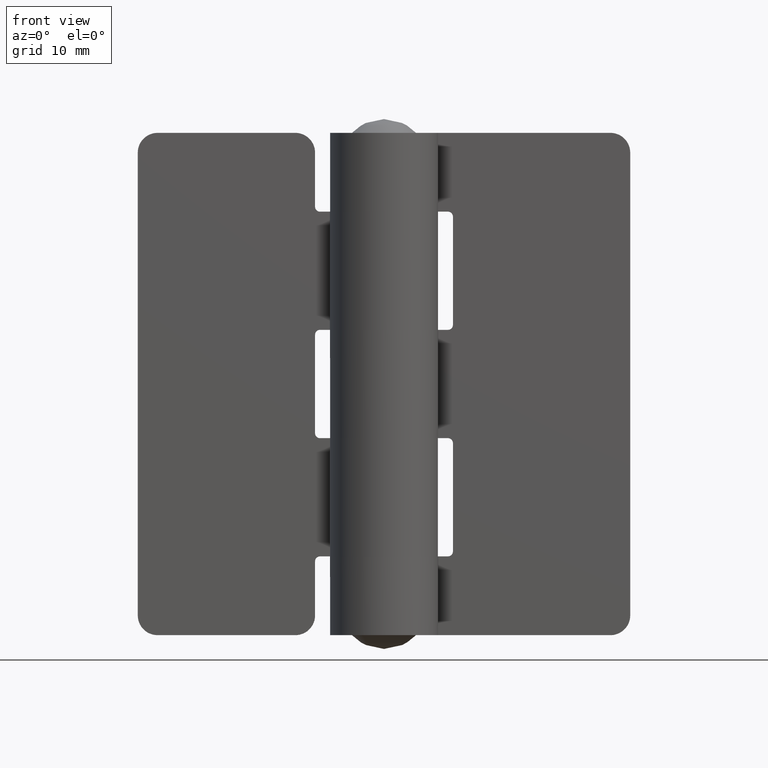
[diagram: clean part render]
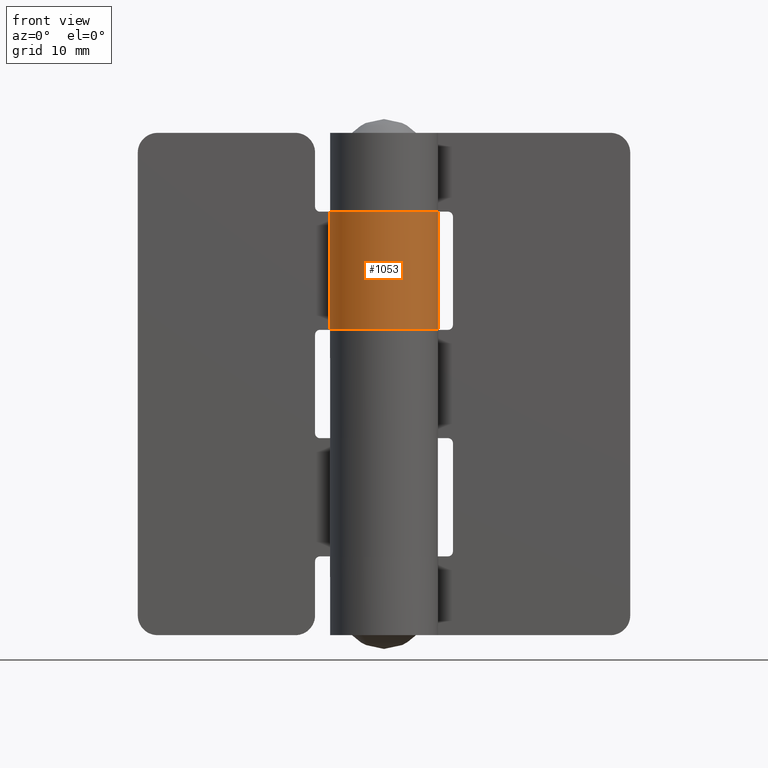
[diagram: same view with one face highlighted and labeled with its STEP entity id]
A machine part, front view. The second image highlights one B-rep face of the part: STEP entity #1053.
In plain terms, the highlighted face is a freeform B-spline surface patch.
Its self-contained STEP definition (entity closure, byte-faithful):
#615=CARTESIAN_POINT('',(0.0,5.499999000000000,31.0));
#616=VERTEX_POINT('',#615);
#622=CARTESIAN_POINT('',(-4.641927929212170,2.949999000000000,31.0));
#623=VERTEX_POINT('',#622);
#624=CARTESIAN_POINT('',(0.0,5.499999000000000,31.0));
#625=CARTESIAN_POINT('',(4.266936746364661,5.499998999999999,30.999999999999996));
#626=CARTESIAN_POINT('',(5.327423778101053,1.366947288129464,31.0));
#627=CARTESIAN_POINT('',(6.387910809837448,-2.766104423741078,30.999999999999996));
#628=CARTESIAN_POINT('',(2.648112294635560,-4.820528007905462,31.0));
#629=CARTESIAN_POINT('',(-1.091686220566328,-6.874951592069845,30.999999999999996));
#630=CARTESIAN_POINT('',(-4.011121749750011,-3.763095973886850,31.0));
#631=CARTESIAN_POINT('',(-6.930557278933692,-0.651240355703858,30.999999999999996));
#632=CARTESIAN_POINT('',(-4.641927929212174,2.949998999999997,31.0));
#640=(BOUNDED_CURVE()B_SPLINE_CURVE(2,(#624,#625,#626,#627,#628,#629,#630,#631,#632),.UNSPECIFIED.,.F.,.U.)B_SPLINE_CURVE_WITH_KNOTS((3,2,2,2,3),(0.0,0.250000000000000,0.500000000000000,0.750000000000000,1.0),.UNSPECIFIED.)CURVE()GEOMETRIC_REPRESENTATION_ITEM()RATIONAL_B_SPLINE_CURVE((1.0,0.790106295303784,1.0,0.790106295303784,1.0,0.790106295303784,1.0,0.790106295303784,1.0))REPRESENTATION_ITEM(''));
#641=EDGE_CURVE('',#616,#623,#640,.T.);
#787=CARTESIAN_POINT('',(0.0,5.499999000000000,43.0));
#788=VERTEX_POINT('',#787);
#823=CARTESIAN_POINT('',(-4.641927929212170,2.949999000000000,43.0));
#824=VERTEX_POINT('',#823);
#830=CARTESIAN_POINT('',(0.0,5.499999000000000,43.0));
#831=CARTESIAN_POINT('',(4.266936746364661,5.499998999999999,43.000000000000007));
#832=CARTESIAN_POINT('',(5.327423778101053,1.366947288129464,43.0));
#833=CARTESIAN_POINT('',(6.387910809837448,-2.766104423741078,43.000000000000007));
#834=CARTESIAN_POINT('',(2.648112294635560,-4.820528007905462,43.0));
#835=CARTESIAN_POINT('',(-1.091686220566328,-6.874951592069845,43.000000000000007));
#836=CARTESIAN_POINT('',(-4.011121749750011,-3.763095973886850,43.0));
#837=CARTESIAN_POINT('',(-6.930557278933692,-0.651240355703858,43.000000000000007));
#838=CARTESIAN_POINT('',(-4.641927929212174,2.949998999999997,43.0));
#846=(BOUNDED_CURVE()B_SPLINE_CURVE(2,(#830,#831,#832,#833,#834,#835,#836,#837,#838),.UNSPECIFIED.,.F.,.U.)B_SPLINE_CURVE_WITH_KNOTS((3,2,2,2,3),(0.0,0.250000000000000,0.500000000000000,0.750000000000000,1.0),.UNSPECIFIED.)CURVE()GEOMETRIC_REPRESENTATION_ITEM()RATIONAL_B_SPLINE_CURVE((1.0,0.790106295303784,1.0,0.790106295303784,1.0,0.790106295303784,1.0,0.790106295303784,1.0))REPRESENTATION_ITEM(''));
#847=EDGE_CURVE('',#788,#824,#846,.T.);
#1017=CARTESIAN_POINT('',(-4.563115285114284,3.070499616472435,43.299999999999997));
#1018=CARTESIAN_POINT('',(-4.563115285114284,3.070499616472435,30.692499999999999));
#1019=CARTESIAN_POINT('',(-8.377500235826686,-2.598114760982548,43.300000000000004));
#1020=CARTESIAN_POINT('',(-8.377500235826686,-2.598114760982548,30.692499999999995));
#1021=CARTESIAN_POINT('',(-2.024961185688061,-5.113660254304913,43.299999999999997));
#1022=CARTESIAN_POINT('',(-2.024961185688061,-5.113660254304913,30.692499999999999));
#1023=CARTESIAN_POINT('',(4.327577864450565,-7.629205747627275,43.300000000000004));
#1024=CARTESIAN_POINT('',(4.327577864450565,-7.629205747627275,30.692499999999995));
#1025=CARTESIAN_POINT('',(5.428173731409754,-0.885956512270263,43.299999999999997));
#1026=CARTESIAN_POINT('',(5.428173731409754,-0.885956512270263,30.692499999999999));
#1027=CARTESIAN_POINT('',(6.528769598368942,5.857292723086750,43.300000000000004));
#1028=CARTESIAN_POINT('',(6.528769598368942,5.857292723086750,30.692499999999995));
#1029=CARTESIAN_POINT('',(-0.293941303655043,5.492138700907558,43.299999999999997));
#1030=CARTESIAN_POINT('',(-0.293941303655043,5.492138700907558,30.692499999999999));
#1038=(BOUNDED_SURFACE()B_SPLINE_SURFACE(1,2,((#1017,#1019,#1021,#1023,#1025,#1027,#1029),(#1018,#1020,#1022,#1024,#1026,#1028,#1030)),.UNSPECIFIED.,.F.,.F.,.U.)B_SPLINE_SURFACE_WITH_KNOTS((2,2),(3,2,2,3),(0.0,12.607500000000011),(0.0,10.532764460398340,21.065528920796680,31.598293381195031),.UNSPECIFIED.)GEOMETRIC_REPRESENTATION_ITEM()RATIONAL_B_SPLINE_SURFACE(((1.0,0.627057105746662,1.0,0.627057105746662,1.0,0.627057105746662,1.0),(1.0,0.627057105746662,1.0,0.627057105746662,1.0,0.627057105746662,1.0)))REPRESENTATION_ITEM('')SURFACE());
#1039=CARTESIAN_POINT('',(-4.641927929212170,2.949999000000000,43.0));
#1040=CARTESIAN_POINT('',(-4.641927929212170,2.949999000000000,31.0));
#1041=QUASI_UNIFORM_CURVE('',1,(#1039,#1040),.UNSPECIFIED.,.F.,.U.);
#1042=EDGE_CURVE('',#824,#623,#1041,.T.);
#1043=ORIENTED_EDGE('',*,*,#1042,.T.);
#1044=ORIENTED_EDGE('',*,*,#641,.F.);
#1045=CARTESIAN_POINT('',(0.0,5.499999000000000,43.0));
#1046=CARTESIAN_POINT('',(0.0,5.499999000000000,31.0));
#1047=QUASI_UNIFORM_CURVE('',1,(#1045,#1046),.UNSPECIFIED.,.F.,.U.);
#1048=EDGE_CURVE('',#788,#616,#1047,.T.);
#1049=ORIENTED_EDGE('',*,*,#1048,.F.);
#1050=ORIENTED_EDGE('',*,*,#847,.T.);
#1051=EDGE_LOOP('',(#1043,#1044,#1049,#1050));
#1052=FACE_OUTER_BOUND('',#1051,.T.);
#1053=ADVANCED_FACE('',(#1052),#1038,.T.);